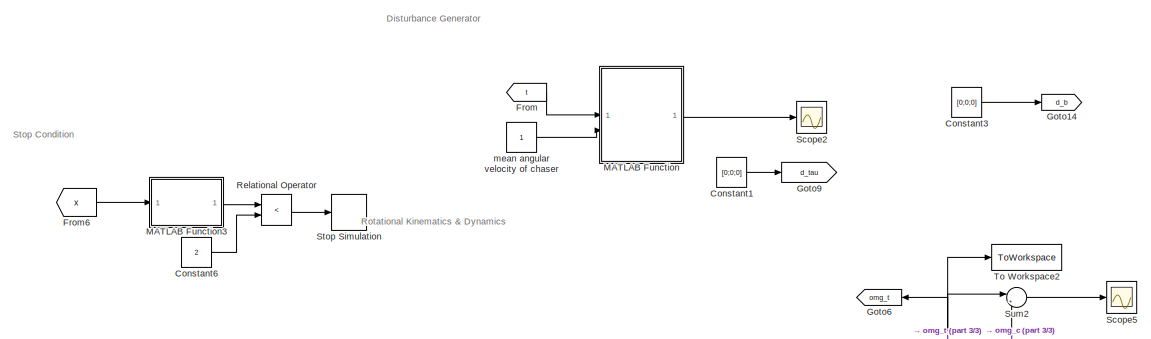
[diagram: root canvas - part 1/3, top center region]
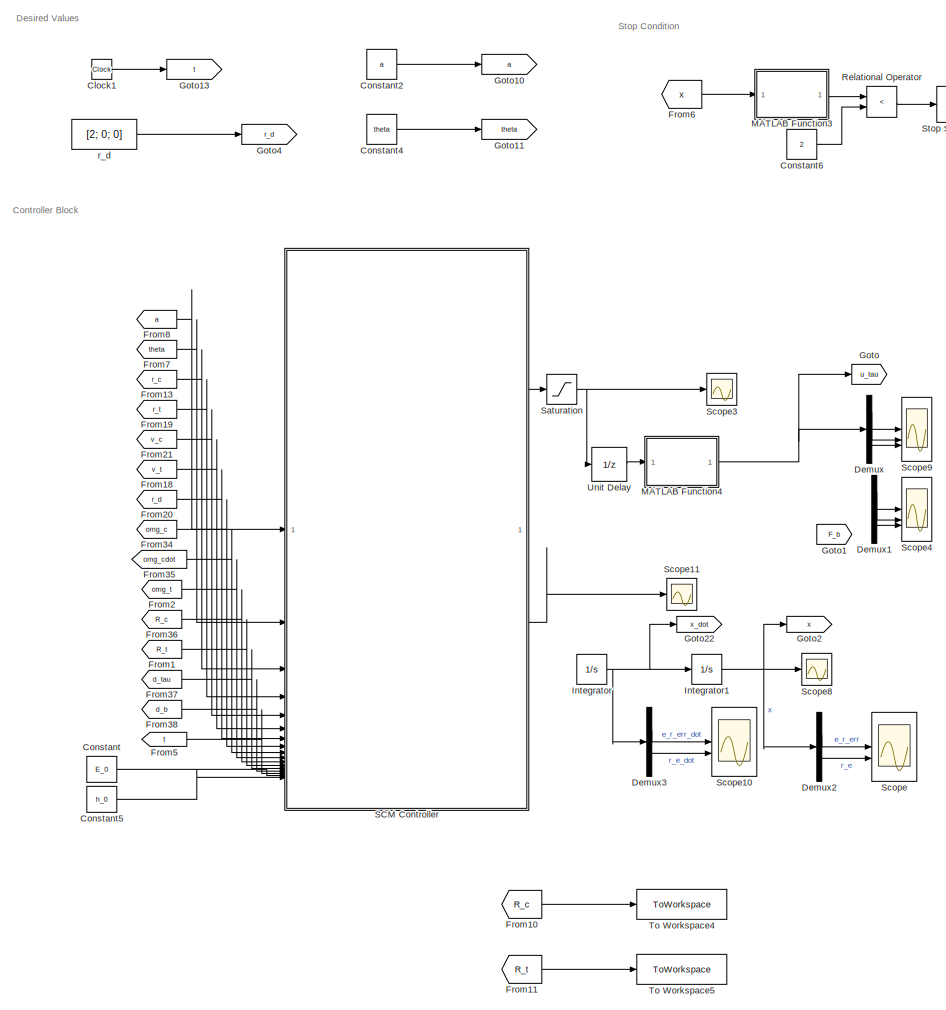
[diagram: root canvas - part 2/3, left side, full height]
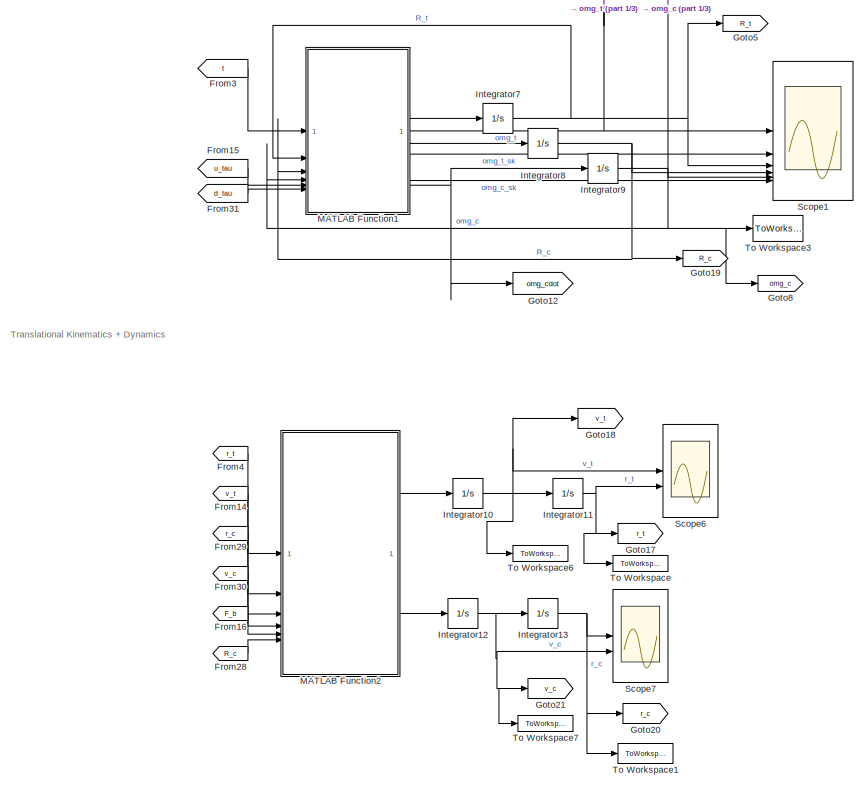
[diagram: root canvas - part 3/3, middle right region]
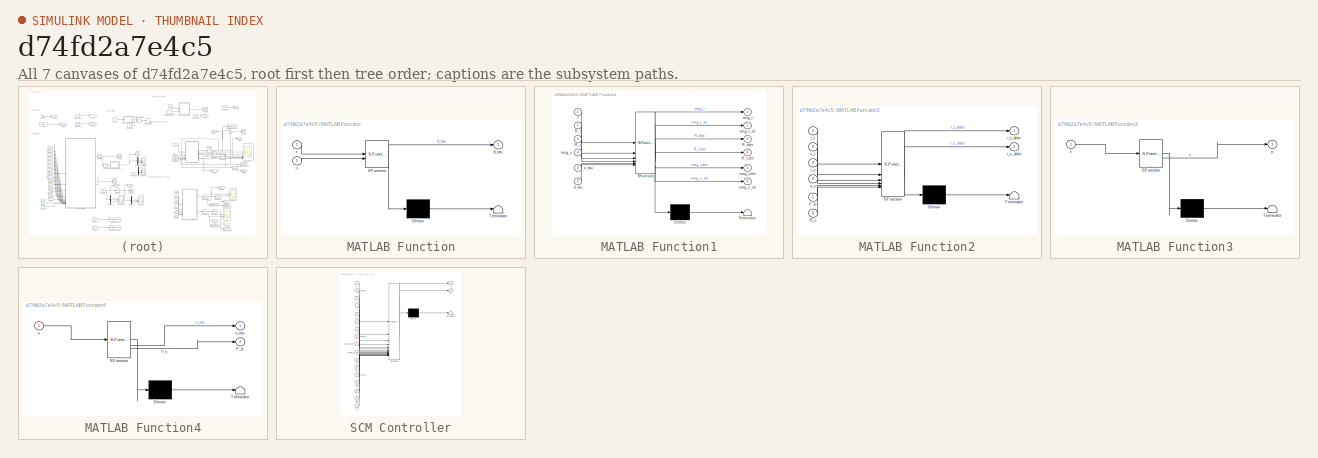
[diagram: thumbnail index - all 7 canvases of the model, root first then tree order]
MODEL slx_d74fd2a7e4c5
KIND model
CONFIG AbsTol = auto
CONFIG EnableMultiTasking = off
CONFIG FixedStep = 0.001
CONFIG MaxStep = 0.01
CONFIG MinStep = auto
CONFIG RelTol = 1e-3
CONFIG SampleTimeConstraint = Unconstrained
CONFIG SolverName = VariableStepAuto
CONFIG StartTime = 0.0
CONFIG StopTime = 50
BLOCK [Clock] Clock1
BLOCK [Constant] Constant
  Value = E_0
BLOCK [Constant] Constant1
  Value = [0;0;0]
BLOCK [Constant] Constant2
  Value = a
BLOCK [Constant] Constant3
  Value = [0;0;0]
BLOCK [Constant] Constant4
  Value = theta
BLOCK [Constant] Constant5
  Value = h_0
BLOCK [Constant] Constant6
  Commented = on
  Value = 2
BLOCK [Demux] Demux
  Outputs = 3
BLOCK [Demux] Demux1
  Outputs = 3
BLOCK [Demux] Demux2
  Commented = on
  Outputs = 2
BLOCK [Demux] Demux3
  Commented = on
  Outputs = 2
BLOCK [From] From
  GotoTag = t
BLOCK [From] From1
  GotoTag = R_t
BLOCK [From] From10
  GotoTag = R_c
BLOCK [From] From11
  GotoTag = R_t
BLOCK [From] From13
  GotoTag = r_c
BLOCK [From] From14
  GotoTag = v_t
BLOCK [From] From15
  GotoTag = u_tau
BLOCK [From] From16
  GotoTag = F_b
BLOCK [From] From18
  GotoTag = v_t
BLOCK [From] From19
  GotoTag = r_t
BLOCK [From] From2
  GotoTag = omg_t
BLOCK [From] From20
  GotoTag = r_d
BLOCK [From] From21
  GotoTag = v_c
BLOCK [From] From28
  GotoTag = R_c
BLOCK [From] From29
  GotoTag = r_c
BLOCK [From] From3
  GotoTag = t
BLOCK [From] From30
  GotoTag = v_c
BLOCK [From] From31
  GotoTag = d_tau
BLOCK [From] From34
  GotoTag = omg_c
BLOCK [From] From35
  GotoTag = omg_cdot
BLOCK [From] From36
  GotoTag = R_c
BLOCK [From] From37
  GotoTag = d_tau
BLOCK [From] From38
  GotoTag = d_b
BLOCK [From] From4
  GotoTag = r_t
BLOCK [From] From5
  GotoTag = t
BLOCK [From] From6
  Commented = on
  GotoTag = x
BLOCK [From] From7
  GotoTag = theta
BLOCK [From] From8
  GotoTag = a
BLOCK [Goto] Goto
  GotoTag = u_tau
BLOCK [Goto] Goto1
  GotoTag = F_b
BLOCK [Goto] Goto10
  GotoTag = a
BLOCK [Goto] Goto11
  GotoTag = theta
BLOCK [Goto] Goto12
  GotoTag = omg_cdot
BLOCK [Goto] Goto13
  GotoTag = t
BLOCK [Goto] Goto14
  GotoTag = d_b
BLOCK [Goto] Goto17
  GotoTag = r_t
BLOCK [Goto] Goto18
  GotoTag = v_t
BLOCK [Goto] Goto19
  GotoTag = R_c
BLOCK [Goto] Goto2
  Commented = on
  GotoTag = x
BLOCK [Goto] Goto20
  GotoTag = r_c
BLOCK [Goto] Goto21
  GotoTag = v_c
BLOCK [Goto] Goto22
  Commented = on
  GotoTag = x_dot
BLOCK [Goto] Goto4
  GotoTag = r_d
BLOCK [Goto] Goto5
  GotoTag = R_t
BLOCK [Goto] Goto6
  GotoTag = omg_t
BLOCK [Goto] Goto8
  GotoTag = omg_c
BLOCK [Goto] Goto9
  GotoTag = d_tau
BLOCK [Integrator] Integrator
  Commented = on
  InitialCondition = x_dot_0
BLOCK [Integrator] Integrator1
  Commented = on
  InitialCondition = x_0
BLOCK [Integrator] Integrator10
  InitialCondition = v_t_0
BLOCK [Integrator] Integrator11
  InitialCondition = r_t_0
BLOCK [Integrator] Integrator12
  InitialCondition = v_t_0+v_0
BLOCK [Integrator] Integrator13
  InitialCondition = r_t_0+r_0
BLOCK [Integrator] Integrator7
  InitialCondition = eye(3)
BLOCK [Integrator] Integrator8
  InitialCondition = [0.2887 0.4082 -0.8660; -0.8165 0.5774 0; 0.5 0.7071 0.5]
BLOCK [Integrator] Integrator9
  InitialCondition = [0;0;0]
BLOCK [SubSystem] MATLAB Function
  ErrorFcn = Stateflow.Translate.translate
  LibrarySourceBlock = simulink/User-Defined\nFunctions/MATLAB Function
  PermitHierarchicalResolution = ExplicitOnly
  SFBlockType = MATLAB Function
  TreatAsAtomicUnit = on
BLOCK [Demux] MATLAB Function/ Demux 
  Outputs = 1
BLOCK [S-Function] MATLAB Function/ SFunction 
  EnableBusSupport = on
  FunctionName = sf_sfun
  PortCounts = [2 2]
  SFcnIsStateOwnerBlock = off
  SFunctionDeploymentMode = off
  Tag = Stateflow S-Function 4
BLOCK [Terminator] MATLAB Function/ Terminator 
BLOCK [Outport] MATLAB Function/d_tau
BLOCK [Inport] MATLAB Function/n
  Port = 2
BLOCK [Inport] MATLAB Function/t
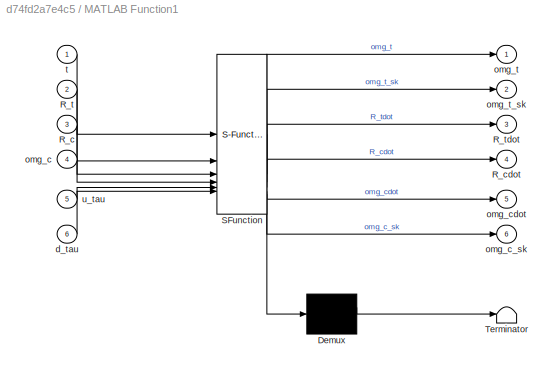
BLOCK [SubSystem] MATLAB Function1
  ErrorFcn = Stateflow.Translate.translate
  LibrarySourceBlock = simulink/User-Defined\nFunctions/MATLAB Function
  PermitHierarchicalResolution = ExplicitOnly
  SFBlockType = MATLAB Function
  TreatAsAtomicUnit = on
BLOCK [Demux] MATLAB Function1/ Demux 
  Outputs = 1
BLOCK [S-Function] MATLAB Function1/ SFunction 
  EnableBusSupport = on
  FunctionName = sf_sfun
  PortCounts = [6 7]
  SFcnIsStateOwnerBlock = off
  SFunctionDeploymentMode = off
  Tag = Stateflow S-Function 5
BLOCK [Terminator] MATLAB Function1/ Terminator 
BLOCK [Inport] MATLAB Function1/R_c
  Port = 3
BLOCK [Outport] MATLAB Function1/R_cdot
  Port = 4
BLOCK [Inport] MATLAB Function1/R_t
  Port = 2
BLOCK [Outport] MATLAB Function1/R_tdot
  Port = 3
BLOCK [Inport] MATLAB Function1/d_tau
  Port = 6
BLOCK [Inport] MATLAB Function1/omg_c
  Port = 4
BLOCK [Outport] MATLAB Function1/omg_c_sk
  Port = 6
BLOCK [Outport] MATLAB Function1/omg_cdot
  Port = 5
BLOCK [Outport] MATLAB Function1/omg_t
BLOCK [Outport] MATLAB Function1/omg_t_sk
  Port = 2
BLOCK [Inport] MATLAB Function1/t
BLOCK [Inport] MATLAB Function1/u_tau
  Port = 5
BLOCK [SubSystem] MATLAB Function2
  ErrorFcn = Stateflow.Translate.translate
  LibrarySourceBlock = simulink/User-Defined\nFunctions/MATLAB Function
  PermitHierarchicalResolution = ExplicitOnly
  SFBlockType = MATLAB Function
  TreatAsAtomicUnit = on
BLOCK [Demux] MATLAB Function2/ Demux 
  Outputs = 1
BLOCK [S-Function] MATLAB Function2/ SFunction 
  EnableBusSupport = on
  FunctionName = sf_sfun
  PortCounts = [6 3]
  SFcnIsStateOwnerBlock = off
  SFunctionDeploymentMode = off
  Tag = Stateflow S-Function 6
BLOCK [Terminator] MATLAB Function2/ Terminator 
BLOCK [Inport] MATLAB Function2/F_b
  Port = 5
BLOCK [Inport] MATLAB Function2/R_c
  Port = 6
BLOCK [Inport] MATLAB Function2/r_c
  Port = 3
BLOCK [Outport] MATLAB Function2/r_c_ddot
  Port = 2
BLOCK [Inport] MATLAB Function2/r_t
BLOCK [Outport] MATLAB Function2/r_t_ddot
BLOCK [Inport] MATLAB Function2/v_c
  Port = 4
BLOCK [Inport] MATLAB Function2/v_t
  Port = 2
BLOCK [SubSystem] MATLAB Function3
  Commented = on
  ErrorFcn = Stateflow.Translate.translate
  LibrarySourceBlock = simulink/User-Defined\nFunctions/MATLAB Function
  PermitHierarchicalResolution = ExplicitOnly
  SFBlockType = MATLAB Function
  TreatAsAtomicUnit = on
BLOCK [Demux] MATLAB Function3/ Demux 
  Outputs = 1
BLOCK [S-Function] MATLAB Function3/ SFunction 
  EnableBusSupport = on
  FunctionName = sf_sfun
  PortCounts = [1 2]
  SFcnIsStateOwnerBlock = off
  SFunctionDeploymentMode = off
  Tag = Stateflow S-Function 2
BLOCK [Terminator] MATLAB Function3/ Terminator 
BLOCK [Inport] MATLAB Function3/x
BLOCK [Outport] MATLAB Function3/y
BLOCK [SubSystem] MATLAB Function4
  ErrorFcn = Stateflow.Translate.translate
  LibrarySourceBlock = simulink/User-Defined\nFunctions/MATLAB Function
  PermitHierarchicalResolution = ExplicitOnly
  SFBlockType = MATLAB Function
  TreatAsAtomicUnit = on
BLOCK [Demux] MATLAB Function4/ Demux 
  Outputs = 1
BLOCK [S-Function] MATLAB Function4/ SFunction 
  EnableBusSupport = on
  FunctionName = sf_sfun
  PortCounts = [1 3]
  SFcnIsStateOwnerBlock = off
  SFunctionDeploymentMode = off
  Tag = Stateflow S-Function 3
BLOCK [Terminator] MATLAB Function4/ Terminator 
BLOCK [Outport] MATLAB Function4/F_b
  Port = 2
BLOCK [Inport] MATLAB Function4/u
BLOCK [Outport] MATLAB Function4/u_tau
BLOCK [RelationalOperator] Relational Operator
  Commented = on
  InputSameDT = off
  Operator = <
  OutDataTypeStr = boolean
  RndMeth = Simplest
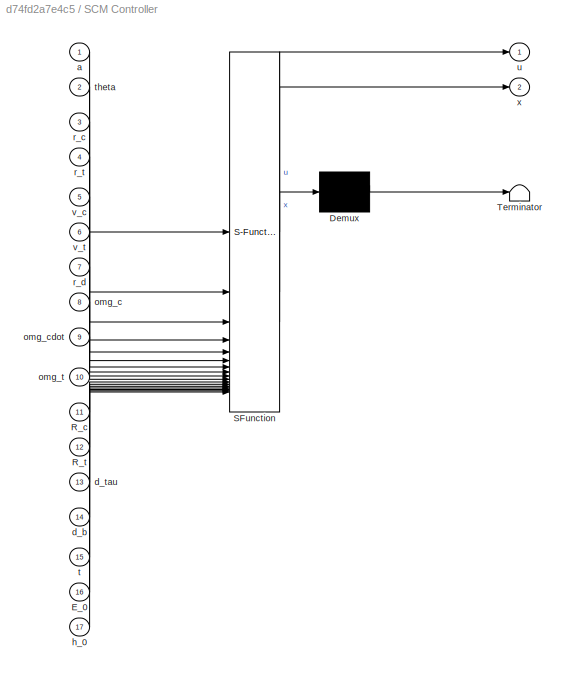
BLOCK [SubSystem] SCM Controller
  ErrorFcn = Stateflow.Translate.translate
  LibrarySourceBlock = simulink/User-Defined\nFunctions/MATLAB Function
  PermitHierarchicalResolution = ExplicitOnly
  SFBlockType = MATLAB Function
  TreatAsAtomicUnit = on
BLOCK [Demux] SCM Controller/ Demux 
  Outputs = 1
BLOCK [S-Function] SCM Controller/ SFunction 
  EnableBusSupport = on
  FunctionName = sf_sfun
  PortCounts = [17 3]
  SFcnIsStateOwnerBlock = off
  SFunctionDeploymentMode = off
  Tag = Stateflow S-Function 1
BLOCK [Terminator] SCM Controller/ Terminator 
BLOCK [Inport] SCM Controller/E_0
  Port = 16
BLOCK [Inport] SCM Controller/R_c
  Port = 11
BLOCK [Inport] SCM Controller/R_t
  Port = 12
BLOCK [Inport] SCM Controller/a
BLOCK [Inport] SCM Controller/d_b
  Port = 14
BLOCK [Inport] SCM Controller/d_tau
  Port = 13
BLOCK [Inport] SCM Controller/h_0
  Port = 17
BLOCK [Inport] SCM Controller/omg_c
  Port = 8
BLOCK [Inport] SCM Controller/omg_cdot
  Port = 9
BLOCK [Inport] SCM Controller/omg_t
  Port = 10
BLOCK [Inport] SCM Controller/r_c
  Port = 3
BLOCK [Inport] SCM Controller/r_d
  Port = 7
BLOCK [Inport] SCM Controller/r_t
  Port = 4
BLOCK [Inport] SCM Controller/t
  Port = 15
BLOCK [Inport] SCM Controller/theta
  Port = 2
BLOCK [Outport] SCM Controller/u
BLOCK [Inport] SCM Controller/v_c
  Port = 5
BLOCK [Inport] SCM Controller/v_t
  Port = 6
BLOCK [Outport] SCM Controller/x
  Port = 2
BLOCK [Saturate] Saturation
  LowerLimit = -10
  UpperLimit = 10
BLOCK [Scope] Scope
  Commented = on
  Floating = off
  NumInputPorts = 2
  ScopeSpecificationString = Simulink.scopes.TimeScopeBlockCfg('CurrentConfiguration', extmgr.ConfigurationSet(extmgr.Configuration('Core','General UI',true),extmgr.Configuration('Core','Source UI',true),extmgr.Configuration('Sources','WiredSimulink',true,'DataLoggingVariableName','ScopeData5','DataLoggingSaveFormat','Array','DataLoggingDecimation','1'),extmgr.Configuration('Visuals','Time Domain',true,'SerializedDisplays',{s...<+2655ch>
BLOCK [Scope] Scope1
  Floating = off
  NumInputPorts = 6
  ScopeSpecificationString = Simulink.scopes.TimeScopeBlockCfg('CurrentConfiguration', extmgr.ConfigurationSet(extmgr.Configuration('Core','General UI',true),extmgr.Configuration('Core','Source UI',true),extmgr.Configuration('Sources','WiredSimulink',true,'DataLoggingVariableName','ScopeData2','DataLoggingSaveFormat','Array','DataLoggingDecimation','1'),extmgr.Configuration('Visuals','Time Domain',true,'SerializedDisplays',{s...<+5388ch>
BLOCK [Scope] Scope10
  Commented = on
  Floating = off
  NumInputPorts = 2
  ScopeSpecificationString = Simulink.scopes.TimeScopeBlockCfg('CurrentConfiguration', extmgr.ConfigurationSet(extmgr.Configuration('Core','General UI',true),extmgr.Configuration('Core','Source UI',true),extmgr.Configuration('Sources','WiredSimulink',true,'DataLoggingVariableName','ScopeData6','DataLoggingSaveFormat','Array','DataLoggingDecimation','1'),extmgr.Configuration('Visuals','Time Domain',true,'SerializedDisplays',{s...<+2714ch>
BLOCK [Scope] Scope11
  Floating = off
  NumInputPorts = 1
  ScopeSpecificationString = Simulink.scopes.TimeScopeBlockCfg('CurrentConfiguration', extmgr.ConfigurationSet(extmgr.Configuration('Core','General UI',true),extmgr.Configuration('Core','Source UI',true),extmgr.Configuration('Sources','WiredSimulink',true,'DataLoggingVariableName','ScopeData1','DataLoggingSaveFormat','Array','DataLoggingLimitDataPoints',true,'DataLoggingDecimation','1'),extmgr.Configuration('Visuals','Time Do...<+2144ch>
BLOCK [Scope] Scope2
  Floating = off
  NumInputPorts = 1
  ScopeSpecificationString = Simulink.scopes.TimeScopeBlockCfg('CurrentConfiguration', extmgr.ConfigurationSet(extmgr.Configuration('Core','General UI',true),extmgr.Configuration('Core','Source UI',true),extmgr.Configuration('Sources','WiredSimulink',true,'DataLoggingVariableName','ScopeData1','DataLoggingSaveFormat','Array','DataLoggingLimitDataPoints',true,'DataLoggingDecimation','1'),extmgr.Configuration('Visuals','Time Do...<+1724ch>
BLOCK [Scope] Scope3
  Floating = off
  NumInputPorts = 1
  ScopeSpecificationString = Simulink.scopes.TimeScopeBlockCfg('CurrentConfiguration', extmgr.ConfigurationSet(extmgr.Configuration('Core','General UI',true),extmgr.Configuration('Core','Source UI',true),extmgr.Configuration('Sources','WiredSimulink',true,'DataLoggingVariableName','ScopeData2','DataLoggingSaveFormat','Array','DataLoggingDecimation','1'),extmgr.Configuration('Visuals','Time Domain',true,'SerializedDisplays',{s...<+2144ch>
BLOCK [Scope] Scope4
  Floating = off
  NumInputPorts = 3
  ScopeSpecificationString = Simulink.scopes.TimeScopeBlockCfg('CurrentConfiguration', extmgr.ConfigurationSet(extmgr.Configuration('Core','General UI',true),extmgr.Configuration('Core','Source UI',true),extmgr.Configuration('Sources','WiredSimulink',true,'DataLoggingVariableName','ScopeData3','DataLoggingSaveFormat','Array','DataLoggingDecimation','1'),extmgr.Configuration('Visuals','Time Domain',true,'SerializedDisplays',{s...<+3333ch>
BLOCK [Scope] Scope5
  Floating = off
  NumInputPorts = 1
  ScopeSpecificationString = Simulink.scopes.TimeScopeBlockCfg('CurrentConfiguration', extmgr.ConfigurationSet(extmgr.Configuration('Core','General UI',true),extmgr.Configuration('Core','Source UI',true),extmgr.Configuration('Sources','WiredSimulink',true,'DataLoggingVariableName','ScopeData4','DataLoggingSaveFormat','Array','DataLoggingLimitDataPoints',true,'DataLoggingDecimation','1'),extmgr.Configuration('Visuals','Time Do...<+1691ch>
BLOCK [Scope] Scope6
  Floating = off
  NumInputPorts = 2
  ScopeSpecificationString = Simulink.scopes.TimeScopeBlockCfg('CurrentConfiguration', extmgr.ConfigurationSet(extmgr.Configuration('Core','General UI',true),extmgr.Configuration('Core','Source UI',true),extmgr.Configuration('Sources','WiredSimulink',true,'DataLoggingVariableName','ScopeData5','DataLoggingSaveFormat','Array','DataLoggingLimitDataPoints',true,'DataLoggingDecimation','1'),extmgr.Configuration('Visuals','Time Do...<+2702ch>
BLOCK [Scope] Scope7
  Floating = off
  NumInputPorts = 2
  ScopeSpecificationString = Simulink.scopes.TimeScopeBlockCfg('CurrentConfiguration', extmgr.ConfigurationSet(extmgr.Configuration('Core','General UI',true),extmgr.Configuration('Core','Source UI',true),extmgr.Configuration('Sources','WiredSimulink',true,'DataLoggingVariableName','ScopeData6','DataLoggingSaveFormat','Array','DataLoggingLimitDataPoints',true,'DataLoggingDecimation','1'),extmgr.Configuration('Visuals','Time Do...<+2675ch>
BLOCK [Scope] Scope8
  Commented = on
  Floating = off
  NumInputPorts = 1
  ScopeSpecificationString = Simulink.scopes.TimeScopeBlockCfg('CurrentConfiguration', extmgr.ConfigurationSet(extmgr.Configuration('Core','General UI',true),extmgr.Configuration('Core','Source UI',true),extmgr.Configuration('Sources','WiredSimulink',true,'DataLoggingVariableName','ScopeData1','DataLoggingSaveFormat','Array','DataLoggingDecimation','1'),extmgr.Configuration('Visuals','Time Domain',true,'SerializedDisplays',{s...<+1807ch>
BLOCK [Scope] Scope9
  Floating = off
  NumInputPorts = 3
  ScopeSpecificationString = Simulink.scopes.TimeScopeBlockCfg('CurrentConfiguration', extmgr.ConfigurationSet(extmgr.Configuration('Core','General UI',true),extmgr.Configuration('Core','Source UI',true),extmgr.Configuration('Sources','WiredSimulink',true,'DataLoggingVariableName','ScopeData4','DataLoggingSaveFormat','Array','DataLoggingDecimation','1'),extmgr.Configuration('Visuals','Time Domain',true,'SerializedDisplays',{s...<+3362ch>
BLOCK [Stop] Stop Simulation
  Commented = on
BLOCK [Sum] Sum2
  Inputs = |+-
BLOCK [ToWorkspace] To Workspace
  FixptAsFi = on
  MaxDataPoints = inf
  SampleTime = -1
  VariableName = r_t
BLOCK [ToWorkspace] To Workspace1
  FixptAsFi = on
  MaxDataPoints = inf
  SampleTime = -1
  VariableName = r_c
BLOCK [ToWorkspace] To Workspace2
  FixptAsFi = on
  MaxDataPoints = inf
  SampleTime = -1
  VariableName = omg_t
BLOCK [ToWorkspace] To Workspace3
  FixptAsFi = on
  MaxDataPoints = inf
  SampleTime = -1
  VariableName = omg_c
BLOCK [ToWorkspace] To Workspace4
  FixptAsFi = on
  MaxDataPoints = inf
  SampleTime = -1
  VariableName = R_c
BLOCK [ToWorkspace] To Workspace5
  FixptAsFi = on
  MaxDataPoints = inf
  SampleTime = -1
  VariableName = R_t
BLOCK [ToWorkspace] To Workspace6
  FixptAsFi = on
  MaxDataPoints = inf
  SampleTime = -1
  VariableName = r_t_dot
BLOCK [ToWorkspace] To Workspace7
  FixptAsFi = on
  MaxDataPoints = inf
  SampleTime = -1
  VariableName = r_c_dot
BLOCK [UnitDelay] Unit Delay
  HasFrameUpgradeWarning = on
  SampleTime = -1
BLOCK [Constant] mean angular velocity of chaser
BLOCK [Constant] r_d
  Value = [2; 0; 0]
ANNOTATION (root): Controller Block
ANNOTATION (root): Desired Values
ANNOTATION (root): Disturbance Generator
ANNOTATION (root): Rotational Kinematics & Dynamics
ANNOTATION (root): Stop Condition
ANNOTATION (root): Translational Kinematics + Dynamics
LINE Clock1:1 -> Goto13:1
LINE Constant1:1 -> Goto9:1
LINE Constant2:1 -> Goto10:1
LINE Constant3:1 -> Goto14:1
LINE Constant4:1 -> Goto11:1
LINE Constant5:1 -> SCM Controller:17
LINE Constant6:1 -> Relational Operator:2
LINE Constant:1 -> SCM Controller:16
LINE Demux1:1 -> Scope4:1
LINE Demux1:2 -> Scope4:2
LINE Demux1:3 -> Scope4:3
LINE Demux2:1 -> Scope:1
LINE Demux2:2 -> Scope:2
LINE Demux3:1 -> Scope10:1
LINE Demux3:2 -> Scope10:2
LINE Demux:1 -> Scope9:1
LINE Demux:2 -> Scope9:2
LINE Demux:3 -> Scope9:3
LINE From10:1 -> To Workspace4:1
LINE From11:1 -> To Workspace5:1
LINE From13:1 -> SCM Controller:3
LINE From14:1 -> MATLAB Function2:2
LINE From15:1 -> MATLAB Function1:5
LINE From16:1 -> MATLAB Function2:5
LINE From18:1 -> SCM Controller:6
LINE From19:1 -> SCM Controller:4
LINE From1:1 -> SCM Controller:12
LINE From20:1 -> SCM Controller:7
LINE From21:1 -> SCM Controller:5
LINE From28:1 -> MATLAB Function2:6
LINE From29:1 -> MATLAB Function2:3
LINE From2:1 -> SCM Controller:10
LINE From30:1 -> MATLAB Function2:4
LINE From31:1 -> MATLAB Function1:6
LINE From34:1 -> SCM Controller:8
LINE From35:1 -> SCM Controller:9
LINE From36:1 -> SCM Controller:11
LINE From37:1 -> SCM Controller:13
LINE From38:1 -> SCM Controller:14
LINE From3:1 -> MATLAB Function1:1
LINE From4:1 -> MATLAB Function2:1
LINE From5:1 -> SCM Controller:15
LINE From6:1 -> MATLAB Function3:1
LINE From7:1 -> SCM Controller:2
LINE From8:1 -> SCM Controller:1
LINE From:1 -> MATLAB Function:1
NET Integrator10:1 -> Goto18:1, Integrator11:1, Scope6:1, To Workspace6:1
NET Integrator11:1 -> Goto17:1, Scope6:2, To Workspace:1
NET Integrator12:1 -> Goto21:1, Integrator13:1, Scope7:2, To Workspace7:1
NET Integrator13:1 -> Goto20:1, Scope7:1, To Workspace1:1
NET Integrator1:1 -> Demux2:1, Goto2:1, Scope8:1
NET Integrator7:1 -> Goto5:1, MATLAB Function1:2, Scope1:3
NET Integrator8:1 -> Goto19:1, MATLAB Function1:3, Scope1:4
NET Integrator9:1 -> Goto8:1, MATLAB Function1:4, Scope1:5, Sum2:2, To Workspace3:1
NET Integrator:1 -> Demux3:1, Goto22:1, Integrator1:1
NET MATLAB Function1:1 -> Goto6:1, Scope1:1, Sum2:1, To Workspace2:1
LINE MATLAB Function1:2 -> Scope1:2
LINE MATLAB Function1:3 -> Integrator7:1
LINE MATLAB Function1:4 -> Integrator8:1
NET MATLAB Function1:5 -> Goto12:1, Integrator9:1
LINE MATLAB Function1:6 -> Scope1:6
LINE MATLAB Function2:1 -> Integrator10:1
LINE MATLAB Function2:2 -> Integrator12:1
LINE MATLAB Function3:1 -> Relational Operator:1
NET MATLAB Function4:1 -> Demux:1, Goto:1
LINE MATLAB Function:1 -> Scope2:1
LINE Relational Operator:1 -> Stop Simulation:1
LINE SCM Controller:1 -> Saturation:1
LINE SCM Controller:2 -> Scope11:1
NET Saturation:1 -> Scope3:1, Unit Delay:1
LINE Sum2:1 -> Scope5:1
LINE Unit Delay:1 -> MATLAB Function4:1
LINE mean angular velocity of chaser:1 -> MATLAB Function:2
LINE r_d:1 -> Goto4:1
note: NET lines group one-source signal fan-out (src -> all destinations, sorted); 1:1 wires keep LINE
CHART MATLAB Function2 states=1 transitions=1
  STATE_LABEL 'eML_blk_kernel()'
  STATE_LABEL 'SCRIPT:\n function [r_t_ddot, r_c_ddot] = fcn(r_t, v_t, r_c, v_c, F_b, R_c)\n%Initial Constants \nm_c = 100; % mass of chaser satellite\nm_t = 100; % mass of target satellite\nmyu = 398332400000000;\n\n%Kinematics & Dynamics of Target Satellite \nr_t_ddot = -myu*r_t/(norm(r_t))^3;\n\n%Kinematics & Dynamics of Chaser Satellite\nF_c = (R_c)*F_b;\nr_c_ddot = -myu*r_c/(norm(r_c))^3 + F_c/m_c;\n'
CHART SCM Controller states=1 transitions=1
  STATE_LABEL 'eML_blk_kernel()'
  STATE_LABEL 'SCRIPT:\nfunction [u, x] = fcn(a, theta, r_c, r_t, v_c, v_t, r_d, omg_c, omg_cdot, omg_t, R_c, R_t, d_tau, d_b, t, E_0, h_0)\n%function [u, x_ddot] = fcn(x_dot, x, a, theta, r_c, r_t, v_c, v_t, r_d, omg_c, omg_cdot, omg_t, omg_tdot, R_c, R_t, d_tau, d_b, E_dot, h_dot)\n%% Defining some constants\n\n\nu_tau = zeros(3,1);\nF_b = zeros(3,1);\nE = zeros(3,3);\nh = zeros(1,1); \nu = zeros(6,1);\nx = zeros(6,1);\nE...<+3608ch>'
CHART MATLAB Function3 states=1 transitions=1
  STATE_LABEL 'eML_blk_kernel()'
  STATE_LABEL 'SCRIPT:\nfunction y = fcn(x)\n\ny = norm(x);'
CHART MATLAB Function4 states=1 transitions=1
  STATE_LABEL 'eML_blk_kernel()'
  STATE_LABEL 'SCRIPT:\nfunction [u_tau, F_b] = fcn(u)\nu_tau = u(1:3);\nF_b = u(4:6);\n'
CHART MATLAB Function states=1 transitions=1
  STATE_LABEL 'eML_blk_kernel()'
  STATE_LABEL 'SCRIPT:\nfunction d_tau = fcn(t, n)\nd_tau = 0.001*[cos(n*t); 2*cos(n*t); 3*cos(n*t)];\n'
CHART MATLAB Function1 states=1 transitions=1
  STATE_LABEL 'eML_blk_kernel()'
  STATE_LABEL 'SCRIPT:\nfunction [omg_t, omg_t_sk, R_tdot, R_cdot, omg_cdot, omg_c_sk] = fcn(t,R_t, R_c, omg_c, u_tau, d_tau)\nJ = [3.06 1 0.5; 1 3 1; 0.4 1 3.95]; % Intertia matrix of chaser satellite\n\n%%% Relative Rotational Kinematics of Target \nomg_t = 0.001*[sin(t/40); -sin(t/50); -sin(t/60)]; % absolute angular of chaser\n%omg_t = [0.001 ; -0.001 ; -0.001];\nomg_t_sk = skew(omg_t);\nR_tdot = R_t*omg_t_sk;\n\n%%% ...<+179ch>'
CHART  states=0 transitions=0
CHART  states=0 transitions=0
CHART  states=0 transitions=0
CHART  states=0 transitions=0
CHART  states=0 transitions=0
CHART  states=0 transitions=0
